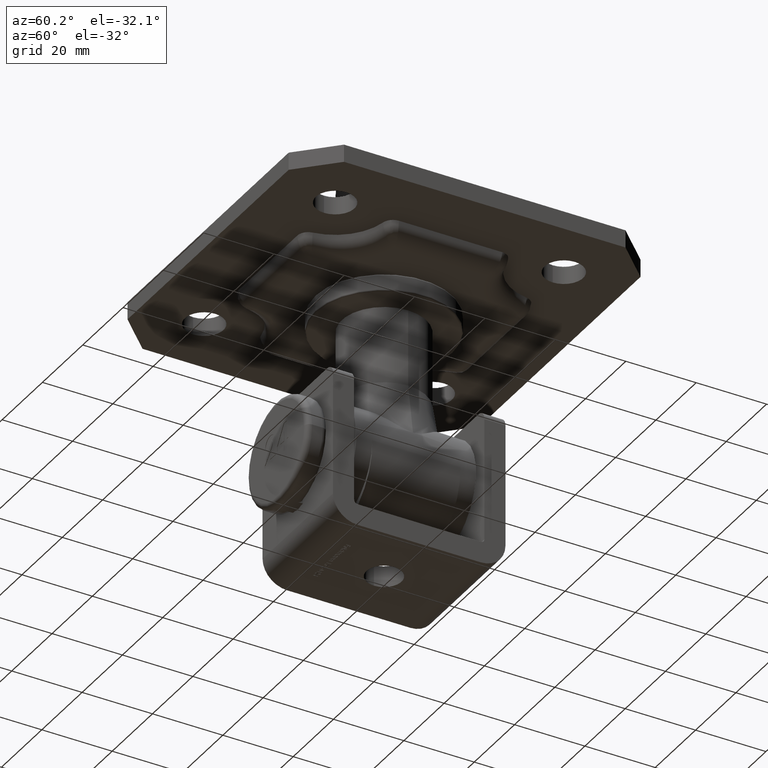
[diagram: clean part render]
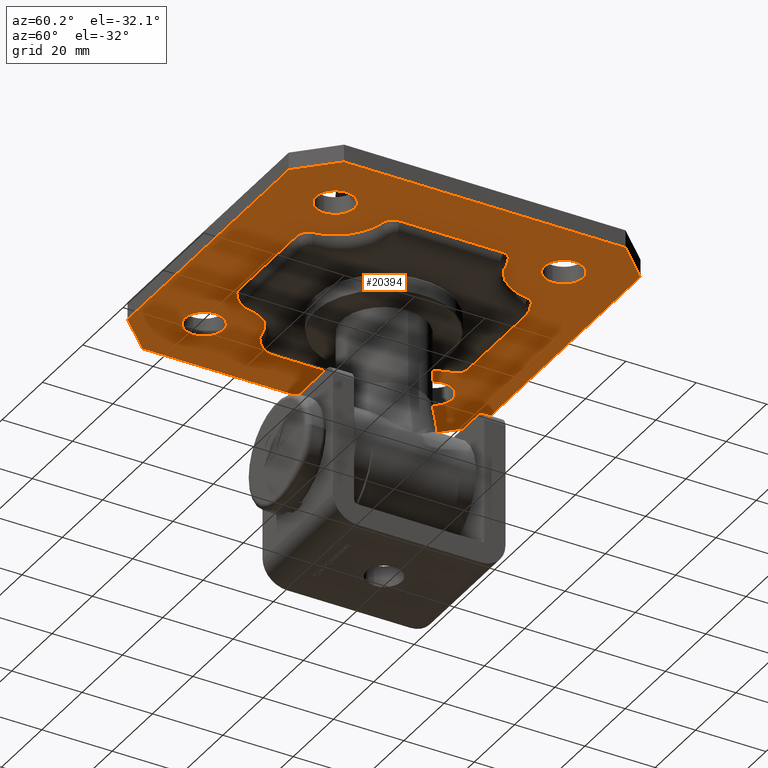
[diagram: same view with one face highlighted and labeled with its STEP entity id]
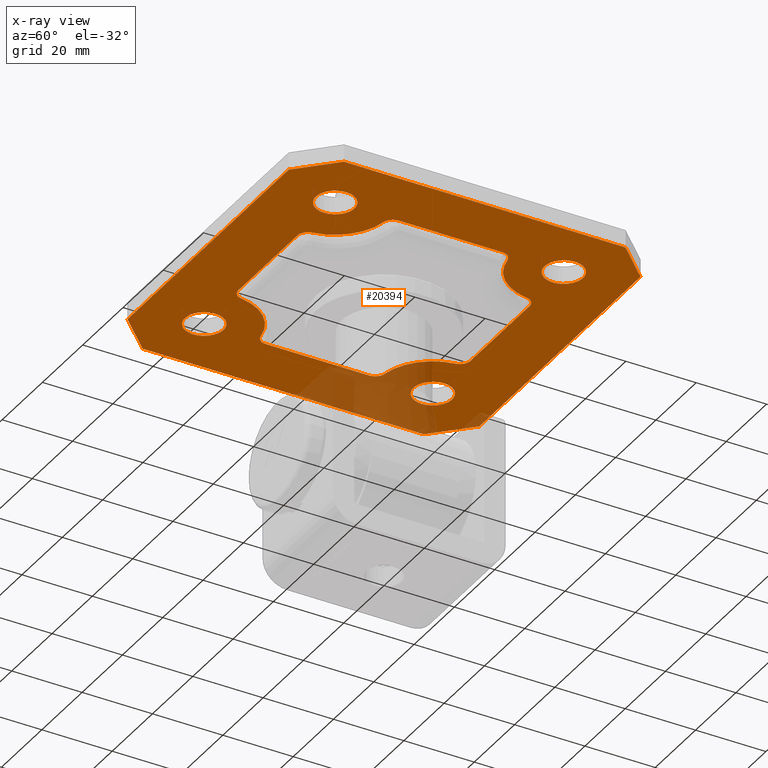
[diagram: x-ray of the same camera — body ghosted, the highlighted face saturated]
A machine part, auxiliary view. The second image highlights one B-rep face of the part: STEP entity #20394.
The next image is the same camera in x-ray: the body ghosted, the highlighted face saturated — about 12% of this face is hidden behind the body in this view.
In plain terms, the highlighted planar face has unit normal (0, 0, -1).
Its self-contained STEP definition (entity closure, byte-faithful):
#33 = CIRCLE ( 'NONE', #7612, 2.999999999999999100 ) ;
#65 = EDGE_CURVE ( 'NONE', #7434, #16310, #17737, .T. ) ;
#84 = DIRECTION ( 'NONE',  ( -0.7071067811865485700, -0.7071067811865465700, -0.0000000000000000000 ) ) ;
#116 = ORIENTED_EDGE ( 'NONE', *, *, #6962, .T. ) ;
#361 = DIRECTION ( 'NONE',  ( 0.7071067811865465700, -0.7071067811865485700, 0.0000000000000000000 ) ) ;
#438 = DIRECTION ( 'NONE',  ( 0.0000000000000000000, -1.000000000000000000, 0.0000000000000000000 ) ) ;
#459 = CARTESIAN_POINT ( 'NONE',  ( 33.00000000000000000, 17.50833564943505700, 2.500000000000000000 ) ) ;
#488 = CARTESIAN_POINT ( 'NONE',  ( -50.00000000000002100, 50.00000000000000000, 2.500000000000000000 ) ) ;
#550 = EDGE_CURVE ( 'NONE', #13258, #12662, #11962, .T. ) ;
#1090 = VERTEX_POINT ( 'NONE', #13791 ) ;
#1130 = DIRECTION ( 'NONE',  ( -0.0000000000000000000, 0.0000000000000000000, 1.000000000000000000 ) ) ;
#1137 = AXIS2_PLACEMENT_3D ( 'NONE', #6044, #19841, #7791 ) ;
#1279 = CARTESIAN_POINT ( 'NONE',  ( 0.0000000000000000000, 0.0000000000000000000, 2.500000000000000000 ) ) ;
#1283 = ORIENTED_EDGE ( 'NONE', *, *, #7781, .T. ) ;
#1292 = LINE ( 'NONE', #488, #2632 ) ;
#1358 = DIRECTION ( 'NONE',  ( 0.0000000000000000000, 0.0000000000000000000, 1.000000000000000000 ) ) ;
#1500 = AXIS2_PLACEMENT_3D ( 'NONE', #6753, #15661, #1926 ) ;
#1614 = CARTESIAN_POINT ( 'NONE',  ( -14.67445653002412000, 33.00000000000000000, 2.500000000000000000 ) ) ;
#1689 = CARTESIAN_POINT ( 'NONE',  ( 37.99999999999999300, -32.50000000000001400, 2.500000000000000000 ) ) ;
#1734 = ORIENTED_EDGE ( 'NONE', *, *, #6853, .T. ) ;
#1829 = DIRECTION ( 'NONE',  ( 1.000000000000000000, 0.0000000000000000000, 0.0000000000000000000 ) ) ;
#1859 = VERTEX_POINT ( 'NONE', #18330 ) ;
#1926 = DIRECTION ( 'NONE',  ( 1.000000000000000000, 0.0000000000000000000, 0.0000000000000000000 ) ) ;
#2042 = FACE_BOUND ( 'NONE', #3395, .T. ) ;
#2112 = CARTESIAN_POINT ( 'NONE',  ( -33.00000000000000000, 17.50833564943505700, 2.500000000000000000 ) ) ;
#2136 = EDGE_CURVE ( 'NONE', #7434, #13679, #10088, .T. ) ;
#2169 = CARTESIAN_POINT ( 'NONE',  ( -14.67445653002412000, 30.00000000000000400, 2.500000000000000400 ) ) ;
#2177 = CARTESIAN_POINT ( 'NONE',  ( -38.00000000000000700, -32.50000000000001400, 2.500000000000000000 ) ) ;
#2183 = CARTESIAN_POINT ( 'NONE',  ( 45.00000000000005700, 44.99999999999992900, 2.500000000000000000 ) ) ;
#2321 = DIRECTION ( 'NONE',  ( -0.7071067811865465700, 0.7071067811865485700, -0.0000000000000000000 ) ) ;
#2329 = CARTESIAN_POINT ( 'NONE',  ( -27.00000000000001400, 32.50000000000000700, 2.500000000000000000 ) ) ;
#2460 = ORIENTED_EDGE ( 'NONE', *, *, #65, .F. ) ;
#2529 = AXIS2_PLACEMENT_3D ( 'NONE', #19951, #9682, #18336 ) ;
#2556 = CIRCLE ( 'NONE', #1137, 5.499999999999998200 ) ;
#2632 = VECTOR ( 'NONE', #15822, 1000.000000000000000 ) ;
#2752 = VECTOR ( 'NONE', #438, 1000.000000000000000 ) ;
#3048 = EDGE_CURVE ( 'NONE', #5602, #21319, #18386, .T. ) ;
#3089 = AXIS2_PLACEMENT_3D ( 'NONE', #1279, #1130, #8138 ) ;
#3218 = DIRECTION ( 'NONE',  ( 1.000000000000000000, 0.0000000000000000000, 0.0000000000000000000 ) ) ;
#3314 = DIRECTION ( 'NONE',  ( -0.0000000000000000000, -0.0000000000000000000, -1.000000000000000000 ) ) ;
#3331 = DIRECTION ( 'NONE',  ( 1.000000000000000000, 0.0000000000000000000, 0.0000000000000000000 ) ) ;
#3395 = EDGE_LOOP ( 'NONE', ( #19912, #13442, #2460, #14525, #4668, #21025, #11681, #1734, #13435, #116, #16723, #6361, #15001, #6785, #15741, #6920 ) ) ;
#3435 = VECTOR ( 'NONE', #22191, 1000.000000000000000 ) ;
#3459 = CIRCLE ( 'NONE', #11053, 15.00000000000000000 ) ;
#3481 = DIRECTION ( 'NONE',  ( 0.0000000000000000000, -0.0000000000000000000, -1.000000000000000000 ) ) ;
#3692 = CIRCLE ( 'NONE', #9042, 2.999999999999999100 ) ;
#3736 = CIRCLE ( 'NONE', #1500, 2.999999999999999100 ) ;
#3741 = VERTEX_POINT ( 'NONE', #10576 ) ;
#3791 = VERTEX_POINT ( 'NONE', #19488 ) ;
#3871 = AXIS2_PLACEMENT_3D ( 'NONE', #8714, #3314, #12085 ) ;
#3915 = CARTESIAN_POINT ( 'NONE',  ( 26.99999999999999600, -32.50000000000001400, 2.500000000000000000 ) ) ;
#3995 = ORIENTED_EDGE ( 'NONE', *, *, #17551, .T. ) ;
#4337 = VERTEX_POINT ( 'NONE', #4913 ) ;
#4402 = CARTESIAN_POINT ( 'NONE',  ( 49.99999999999999300, 39.99999999999997200, 2.500000000000000000 ) ) ;
#4541 = EDGE_CURVE ( 'NONE', #1090, #11505, #20303, .T. ) ;
#4668 = ORIENTED_EDGE ( 'NONE', *, *, #5828, .F. ) ;
#4715 = CARTESIAN_POINT ( 'NONE',  ( -50.00000000000002100, 50.00000000000000000, 2.500000000000000000 ) ) ;
#4800 = EDGE_LOOP ( 'NONE', ( #14925, #19617 ) ) ;
#4913 = CARTESIAN_POINT ( 'NONE',  ( -14.67445653002412700, -33.00000000000000000, 2.500000000000000000 ) ) ;
#5229 = DIRECTION ( 'NONE',  ( 0.0000000000000000000, 0.0000000000000000000, 1.000000000000000000 ) ) ;
#5447 = AXIS2_PLACEMENT_3D ( 'NONE', #2169, #10900, #7051 ) ;
#5457 = LINE ( 'NONE', #9790, #14671 ) ;
#5602 = VERTEX_POINT ( 'NONE', #20174 ) ;
#5634 = ORIENTED_EDGE ( 'NONE', *, *, #18132, .T. ) ;
#5740 = VECTOR ( 'NONE', #8331, 1000.000000000000100 ) ;
#5757 = AXIS2_PLACEMENT_3D ( 'NONE', #14897, #20037, #14831 ) ;
#5828 = EDGE_CURVE ( 'NONE', #14003, #13679, #16348, .T. ) ;
#5849 = CIRCLE ( 'NONE', #5757, 5.499999999999994700 ) ;
#5918 = EDGE_CURVE ( 'NONE', #9758, #11517, #17934, .T. ) ;
#6044 = CARTESIAN_POINT ( 'NONE',  ( 32.49999999999999300, -32.50000000000001400, 2.500000000000000000 ) ) ;
#6188 = ORIENTED_EDGE ( 'NONE', *, *, #19381, .T. ) ;
#6215 = VERTEX_POINT ( 'NONE', #12860 ) ;
#6361 = ORIENTED_EDGE ( 'NONE', *, *, #10303, .T. ) ;
#6379 = EDGE_CURVE ( 'NONE', #11505, #1090, #10321, .T. ) ;
#6537 = DIRECTION ( 'NONE',  ( 0.0000000000000000000, -0.0000000000000000000, -1.000000000000000000 ) ) ;
#6574 = EDGE_CURVE ( 'NONE', #13258, #8596, #16129, .T. ) ;
#6608 = EDGE_CURVE ( 'NONE', #9429, #10431, #10187, .T. ) ;
#6638 = DIRECTION ( 'NONE',  ( -1.000000000000000000, -0.0000000000000000000, -0.0000000000000000000 ) ) ;
#6699 = EDGE_CURVE ( 'NONE', #4337, #18567, #17722, .T. ) ;
#6753 = CARTESIAN_POINT ( 'NONE',  ( 14.67445653002412000, -30.00000000000000400, 2.500000000000000400 ) ) ;
#6785 = ORIENTED_EDGE ( 'NONE', *, *, #16864, .T. ) ;
#6853 = EDGE_CURVE ( 'NONE', #15291, #3741, #15299, .T. ) ;
#6885 = FACE_BOUND ( 'NONE', #18415, .T. ) ;
#6920 = ORIENTED_EDGE ( 'NONE', *, *, #550, .T. ) ;
#6921 = CARTESIAN_POINT ( 'NONE',  ( -30.00000000000000400, -14.67445653002411800, 2.500000000000000400 ) ) ;
#6962 = EDGE_CURVE ( 'NONE', #1859, #16287, #3692, .T. ) ;
#6987 = ORIENTED_EDGE ( 'NONE', *, *, #6379, .F. ) ;
#7048 = VERTEX_POINT ( 'NONE', #2177 ) ;
#7051 = DIRECTION ( 'NONE',  ( 1.000000000000000000, 2.312964634635743400E-015, 0.0000000000000000000 ) ) ;
#7254 = DIRECTION ( 'NONE',  ( 1.000000000000000000, 0.0000000000000000000, 0.0000000000000000000 ) ) ;
#7273 = LINE ( 'NONE', #2112, #2752 ) ;
#7302 = AXIS2_PLACEMENT_3D ( 'NONE', #11693, #9884, #21849 ) ;
#7315 = CIRCLE ( 'NONE', #2529, 2.999999999999999100 ) ;
#7324 = VECTOR ( 'NONE', #9719, 1000.000000000000000 ) ;
#7415 = DIRECTION ( 'NONE',  ( 0.0000000000000000000, 0.0000000000000000000, 1.000000000000000000 ) ) ;
#7434 = VERTEX_POINT ( 'NONE', #14898 ) ;
#7528 = CARTESIAN_POINT ( 'NONE',  ( 32.49999999999999300, 32.49999999999997200, 2.500000000000000000 ) ) ;
#7572 = VECTOR ( 'NONE', #18907, 1000.000000000000000 ) ;
#7612 = AXIS2_PLACEMENT_3D ( 'NONE', #22169, #6537, #3331 ) ;
#7673 = EDGE_CURVE ( 'NONE', #7048, #14904, #8231, .T. ) ;
#7713 = EDGE_CURVE ( 'NONE', #15291, #3791, #10705, .T. ) ;
#7759 = VECTOR ( 'NONE', #6638, 1000.000000000000000 ) ;
#7781 = EDGE_CURVE ( 'NONE', #15709, #9474, #1292, .T. ) ;
#7791 = DIRECTION ( 'NONE',  ( 1.000000000000000000, 0.0000000000000000000, 0.0000000000000000000 ) ) ;
#7856 = CARTESIAN_POINT ( 'NONE',  ( 32.50000000000000700, -32.50000000000000700, 2.500000000000000000 ) ) ;
#7976 = EDGE_CURVE ( 'NONE', #1859, #3741, #21928, .T. ) ;
#8138 = DIRECTION ( 'NONE',  ( 1.000000000000000000, 0.0000000000000000000, 0.0000000000000000000 ) ) ;
#8223 = CARTESIAN_POINT ( 'NONE',  ( -33.00000000000000000, 14.67445653002412000, 2.500000000000000000 ) ) ;
#8231 = CIRCLE ( 'NONE', #7302, 5.499999999999994700 ) ;
#8321 = AXIS2_PLACEMENT_3D ( 'NONE', #20948, #19091, #1829 ) ;
#8331 = DIRECTION ( 'NONE',  ( 0.7071067811865489100, 0.7071067811865460200, -0.0000000000000000000 ) ) ;
#8552 = ORIENTED_EDGE ( 'NONE', *, *, #4541, .F. ) ;
#8596 = VERTEX_POINT ( 'NONE', #20686 ) ;
#8710 = DIRECTION ( 'NONE',  ( 1.000000000000000000, 0.0000000000000000000, 0.0000000000000000000 ) ) ;
#8714 = CARTESIAN_POINT ( 'NONE',  ( 32.50000000000000700, 32.50000000000000700, 2.500000000000000000 ) ) ;
#8742 = AXIS2_PLACEMENT_3D ( 'NONE', #13237, #1358, #14948 ) ;
#9042 = AXIS2_PLACEMENT_3D ( 'NONE', #12026, #10124, #13752 ) ;
#9100 = CARTESIAN_POINT ( 'NONE',  ( -40.00000000000000700, 50.00000000000000000, 2.500000000000000000 ) ) ;
#9216 = DIRECTION ( 'NONE',  ( 1.000000000000000000, 0.0000000000000000000, 0.0000000000000000000 ) ) ;
#9429 = VERTEX_POINT ( 'NONE', #1689 ) ;
#9473 = EDGE_CURVE ( 'NONE', #11517, #9758, #9697, .T. ) ;
#9474 = VERTEX_POINT ( 'NONE', #20723 ) ;
#9682 = DIRECTION ( 'NONE',  ( 0.0000000000000000000, -0.0000000000000000000, -1.000000000000000000 ) ) ;
#9697 = CIRCLE ( 'NONE', #13587, 5.499999999999994700 ) ;
#9719 = DIRECTION ( 'NONE',  ( -6.938893903907228400E-017, 1.000000000000000000, -0.0000000000000000000 ) ) ;
#9758 = VERTEX_POINT ( 'NONE', #2329 ) ;
#9765 = LINE ( 'NONE', #17135, #7572 ) ;
#9790 = CARTESIAN_POINT ( 'NONE',  ( -45.00000000000006400, -44.99999999999993600, 2.500000000000000000 ) ) ;
#9884 = DIRECTION ( 'NONE',  ( 0.0000000000000000000, 0.0000000000000000000, 1.000000000000000000 ) ) ;
#10088 = CIRCLE ( 'NONE', #5447, 2.999999999999999100 ) ;
#10103 = ORIENTED_EDGE ( 'NONE', *, *, #9473, .F. ) ;
#10124 = DIRECTION ( 'NONE',  ( 0.0000000000000000000, -0.0000000000000000000, -1.000000000000000000 ) ) ;
#10187 = CIRCLE ( 'NONE', #8742, 5.499999999999998200 ) ;
#10303 = EDGE_CURVE ( 'NONE', #11016, #18567, #3736, .T. ) ;
#10321 = CIRCLE ( 'NONE', #8321, 5.499999999999998200 ) ;
#10366 = DIRECTION ( 'NONE',  ( 1.000000000000000000, 1.156482317317871700E-015, 0.0000000000000000000 ) ) ;
#10431 = VERTEX_POINT ( 'NONE', #3915 ) ;
#10523 = EDGE_CURVE ( 'NONE', #14904, #7048, #5849, .T. ) ;
#10576 = CARTESIAN_POINT ( 'NONE',  ( 33.00000000000000000, 14.67445653002412000, 2.500000000000000000 ) ) ;
#10702 = EDGE_CURVE ( 'NONE', #11016, #16287, #3459, .T. ) ;
#10705 = CIRCLE ( 'NONE', #3871, 15.00000000000000000 ) ;
#10900 = DIRECTION ( 'NONE',  ( 0.0000000000000000000, -0.0000000000000000000, -1.000000000000000000 ) ) ;
#11016 = VERTEX_POINT ( 'NONE', #11746 ) ;
#11053 = AXIS2_PLACEMENT_3D ( 'NONE', #7856, #21450, #12804 ) ;
#11261 = CARTESIAN_POINT ( 'NONE',  ( 39.99999999999992200, -50.00000000000000000, 2.500000000000000000 ) ) ;
#11494 = EDGE_CURVE ( 'NONE', #19308, #16310, #21971, .T. ) ;
#11505 = VERTEX_POINT ( 'NONE', #13990 ) ;
#11517 = VERTEX_POINT ( 'NONE', #17429 ) ;
#11681 = ORIENTED_EDGE ( 'NONE', *, *, #7713, .F. ) ;
#11693 = CARTESIAN_POINT ( 'NONE',  ( -32.50000000000000700, -32.50000000000001400, 2.500000000000000000 ) ) ;
#11746 = CARTESIAN_POINT ( 'NONE',  ( 17.64538044168677200, -30.41666666666666800, 2.500000000000000000 ) ) ;
#11757 = VECTOR ( 'NONE', #12217, 1000.000000000000000 ) ;
#11946 = DIRECTION ( 'NONE',  ( 0.0000000000000000000, -0.0000000000000000000, -1.000000000000000000 ) ) ;
#11962 = CIRCLE ( 'NONE', #20419, 2.999999999999999100 ) ;
#12026 = CARTESIAN_POINT ( 'NONE',  ( 30.00000000000000400, -14.67445653002412000, 2.500000000000000400 ) ) ;
#12085 = DIRECTION ( 'NONE',  ( 1.000000000000000000, 0.0000000000000000000, 0.0000000000000000000 ) ) ;
#12217 = DIRECTION ( 'NONE',  ( -1.000000000000000000, -0.0000000000000000000, -0.0000000000000000000 ) ) ;
#12458 = LINE ( 'NONE', #2183, #15366 ) ;
#12594 = DIRECTION ( 'NONE',  ( -0.0000000000000000000, 1.000000000000000000, -0.0000000000000000000 ) ) ;
#12609 = EDGE_LOOP ( 'NONE', ( #16027, #20121, #1283, #18967, #6188, #5634, #12898, #3995 ) ) ;
#12662 = VERTEX_POINT ( 'NONE', #20932 ) ;
#12804 = DIRECTION ( 'NONE',  ( 1.000000000000000000, 0.0000000000000000000, 0.0000000000000000000 ) ) ;
#12808 = LINE ( 'NONE', #20715, #20548 ) ;
#12860 = CARTESIAN_POINT ( 'NONE',  ( 39.99999999999997900, 50.00000000000000700, 2.500000000000000000 ) ) ;
#12898 = ORIENTED_EDGE ( 'NONE', *, *, #3048, .T. ) ;
#13034 = CARTESIAN_POINT ( 'NONE',  ( -40.00000000000000700, -50.00000000000000000, 2.500000000000000000 ) ) ;
#13237 = CARTESIAN_POINT ( 'NONE',  ( 32.49999999999999300, -32.50000000000001400, 2.500000000000000000 ) ) ;
#13258 = VERTEX_POINT ( 'NONE', #19759 ) ;
#13435 = ORIENTED_EDGE ( 'NONE', *, *, #7976, .F. ) ;
#13442 = ORIENTED_EDGE ( 'NONE', *, *, #11494, .T. ) ;
#13587 = AXIS2_PLACEMENT_3D ( 'NONE', #17396, #5229, #8710 ) ;
#13610 = CARTESIAN_POINT ( 'NONE',  ( 14.67445653002412300, -33.00000000000000000, 2.500000000000000000 ) ) ;
#13671 = ORIENTED_EDGE ( 'NONE', *, *, #15258, .F. ) ;
#13679 = VERTEX_POINT ( 'NONE', #1614 ) ;
#13752 = DIRECTION ( 'NONE',  ( 1.000000000000000000, 0.0000000000000000000, 0.0000000000000000000 ) ) ;
#13791 = CARTESIAN_POINT ( 'NONE',  ( 37.99999999999999300, 32.49999999999997200, 2.500000000000000000 ) ) ;
#13809 = CARTESIAN_POINT ( 'NONE',  ( 30.00000000000000400, 14.67445653002412000, 2.500000000000000400 ) ) ;
#13900 = VERTEX_POINT ( 'NONE', #13034 ) ;
#13917 = VERTEX_POINT ( 'NONE', #11261 ) ;
#13990 = CARTESIAN_POINT ( 'NONE',  ( 27.00000000000000000, 32.49999999999997200, 2.500000000000000000 ) ) ;
#13999 = CARTESIAN_POINT ( 'NONE',  ( -50.00000000000001400, 40.00000000000002100, 2.500000000000000000 ) ) ;
#14003 = VERTEX_POINT ( 'NONE', #19227 ) ;
#14083 = EDGE_CURVE ( 'NONE', #9474, #13900, #5457, .T. ) ;
#14092 = FACE_BOUND ( 'NONE', #16760, .T. ) ;
#14213 = VERTEX_POINT ( 'NONE', #9100 ) ;
#14411 = FACE_BOUND ( 'NONE', #19844, .T. ) ;
#14514 = ORIENTED_EDGE ( 'NONE', *, *, #5918, .F. ) ;
#14525 = ORIENTED_EDGE ( 'NONE', *, *, #2136, .T. ) ;
#14671 = VECTOR ( 'NONE', #361, 1000.000000000000000 ) ;
#14674 = CARTESIAN_POINT ( 'NONE',  ( 30.41666666666666800, 17.64538044168677200, 2.500000000000000000 ) ) ;
#14831 = DIRECTION ( 'NONE',  ( 1.000000000000000000, 0.0000000000000000000, 0.0000000000000000000 ) ) ;
#14897 = CARTESIAN_POINT ( 'NONE',  ( -32.50000000000000700, -32.50000000000001400, 2.500000000000000000 ) ) ;
#14898 = CARTESIAN_POINT ( 'NONE',  ( -17.64538044168677200, 30.41666666666666800, 2.500000000000000000 ) ) ;
#14904 = VERTEX_POINT ( 'NONE', #21786 ) ;
#14925 = ORIENTED_EDGE ( 'NONE', *, *, #7673, .F. ) ;
#14948 = DIRECTION ( 'NONE',  ( 1.000000000000000000, 0.0000000000000000000, 0.0000000000000000000 ) ) ;
#15001 = ORIENTED_EDGE ( 'NONE', *, *, #6699, .F. ) ;
#15036 = FACE_OUTER_BOUND ( 'NONE', #12609, .T. ) ;
#15258 = EDGE_CURVE ( 'NONE', #10431, #9429, #2556, .T. ) ;
#15281 = CARTESIAN_POINT ( 'NONE',  ( -32.50000000000000700, 32.50000000000000700, 2.500000000000000000 ) ) ;
#15291 = VERTEX_POINT ( 'NONE', #14674 ) ;
#15299 = CIRCLE ( 'NONE', #16439, 2.999999999999999100 ) ;
#15366 = VECTOR ( 'NONE', #2321, 1000.000000000000000 ) ;
#15437 = CARTESIAN_POINT ( 'NONE',  ( 30.41666666666666800, -17.64538044168677200, 2.500000000000000000 ) ) ;
#15534 = DIRECTION ( 'NONE',  ( 1.000000000000000000, 1.156482317317871700E-015, 0.0000000000000000000 ) ) ;
#15661 = DIRECTION ( 'NONE',  ( 0.0000000000000000000, -0.0000000000000000000, -1.000000000000000000 ) ) ;
#15709 = VERTEX_POINT ( 'NONE', #13999 ) ;
#15741 = ORIENTED_EDGE ( 'NONE', *, *, #6574, .F. ) ;
#15780 = EDGE_CURVE ( 'NONE', #19308, #12662, #7273, .T. ) ;
#15822 = DIRECTION ( 'NONE',  ( 2.081668171172168500E-016, -1.000000000000000000, 0.0000000000000000000 ) ) ;
#15830 = AXIS2_PLACEMENT_3D ( 'NONE', #16131, #7415, #7254 ) ;
#16027 = ORIENTED_EDGE ( 'NONE', *, *, #21947, .T. ) ;
#16129 = CIRCLE ( 'NONE', #17278, 15.00000000000000000 ) ;
#16131 = CARTESIAN_POINT ( 'NONE',  ( -32.50000000000000700, 32.50000000000000700, 2.500000000000000000 ) ) ;
#16287 = VERTEX_POINT ( 'NONE', #15437 ) ;
#16310 = VERTEX_POINT ( 'NONE', #21037 ) ;
#16348 = LINE ( 'NONE', #17856, #11757 ) ;
#16439 = AXIS2_PLACEMENT_3D ( 'NONE', #13809, #3481, #15534 ) ;
#16723 = ORIENTED_EDGE ( 'NONE', *, *, #10702, .F. ) ;
#16760 = EDGE_LOOP ( 'NONE', ( #10103, #14514 ) ) ;
#16864 = EDGE_CURVE ( 'NONE', #4337, #8596, #33, .T. ) ;
#16866 = DIRECTION ( 'NONE',  ( -0.0000000000000000000, -0.0000000000000000000, -1.000000000000000000 ) ) ;
#17095 = LINE ( 'NONE', #21829, #5740 ) ;
#17110 = AXIS2_PLACEMENT_3D ( 'NONE', #7528, #19516, #9216 ) ;
#17128 = DIRECTION ( 'NONE',  ( 1.000000000000000000, 0.0000000000000000000, 0.0000000000000000000 ) ) ;
#17135 = CARTESIAN_POINT ( 'NONE',  ( -50.00000000000000000, -50.00000000000000000, 2.500000000000000000 ) ) ;
#17278 = AXIS2_PLACEMENT_3D ( 'NONE', #21975, #21736, #3218 ) ;
#17286 = CARTESIAN_POINT ( 'NONE',  ( -17.50833564943506100, -33.00000000000000000, 2.500000000000000000 ) ) ;
#17396 = CARTESIAN_POINT ( 'NONE',  ( -32.50000000000000700, 32.50000000000000700, 2.500000000000000000 ) ) ;
#17429 = CARTESIAN_POINT ( 'NONE',  ( -38.00000000000000700, 32.50000000000000700, 2.500000000000000000 ) ) ;
#17551 = EDGE_CURVE ( 'NONE', #21319, #6215, #12458, .T. ) ;
#17722 = LINE ( 'NONE', #17286, #3435 ) ;
#17737 = CIRCLE ( 'NONE', #21690, 15.00000000000000000 ) ;
#17856 = CARTESIAN_POINT ( 'NONE',  ( -17.50833564943506100, 33.00000000000000000, 2.500000000000000000 ) ) ;
#17934 = CIRCLE ( 'NONE', #15830, 5.499999999999994700 ) ;
#18132 = EDGE_CURVE ( 'NONE', #13917, #5602, #17095, .T. ) ;
#18173 = EDGE_CURVE ( 'NONE', #14213, #15709, #12808, .T. ) ;
#18330 = CARTESIAN_POINT ( 'NONE',  ( 33.00000000000000000, -14.67445653002412000, 2.500000000000000000 ) ) ;
#18336 = DIRECTION ( 'NONE',  ( 1.000000000000000000, 0.0000000000000000000, 0.0000000000000000000 ) ) ;
#18348 = AXIS2_PLACEMENT_3D ( 'NONE', #20610, #11946, #17128 ) ;
#18386 = LINE ( 'NONE', #19987, #7324 ) ;
#18415 = EDGE_LOOP ( 'NONE', ( #6987, #8552 ) ) ;
#18479 = PLANE ( 'NONE',  #3089 ) ;
#18560 = LINE ( 'NONE', #4715, #7759 ) ;
#18567 = VERTEX_POINT ( 'NONE', #13610 ) ;
#18907 = DIRECTION ( 'NONE',  ( 1.000000000000000000, 0.0000000000000000000, 0.0000000000000000000 ) ) ;
#18967 = ORIENTED_EDGE ( 'NONE', *, *, #14083, .T. ) ;
#19001 = DIRECTION ( 'NONE',  ( 0.0000000000000000000, -0.0000000000000000000, -1.000000000000000000 ) ) ;
#19091 = DIRECTION ( 'NONE',  ( 0.0000000000000000000, 0.0000000000000000000, 1.000000000000000000 ) ) ;
#19215 = EDGE_CURVE ( 'NONE', #14003, #3791, #7315, .T. ) ;
#19227 = CARTESIAN_POINT ( 'NONE',  ( 14.67445653002412300, 33.00000000000000000, 2.500000000000000000 ) ) ;
#19308 = VERTEX_POINT ( 'NONE', #8223 ) ;
#19381 = EDGE_CURVE ( 'NONE', #13900, #13917, #9765, .T. ) ;
#19488 = CARTESIAN_POINT ( 'NONE',  ( 17.64538044168677200, 30.41666666666666800, 2.500000000000000000 ) ) ;
#19516 = DIRECTION ( 'NONE',  ( 0.0000000000000000000, 0.0000000000000000000, 1.000000000000000000 ) ) ;
#19617 = ORIENTED_EDGE ( 'NONE', *, *, #10523, .F. ) ;
#19759 = CARTESIAN_POINT ( 'NONE',  ( -30.41666666666667100, -17.64538044168676100, 2.500000000000000000 ) ) ;
#19811 = VECTOR ( 'NONE', #12594, 1000.000000000000000 ) ;
#19841 = DIRECTION ( 'NONE',  ( 0.0000000000000000000, 0.0000000000000000000, 1.000000000000000000 ) ) ;
#19844 = EDGE_LOOP ( 'NONE', ( #13671, #19953 ) ) ;
#19912 = ORIENTED_EDGE ( 'NONE', *, *, #15780, .F. ) ;
#19951 = CARTESIAN_POINT ( 'NONE',  ( 14.67445653002412000, 30.00000000000000400, 2.500000000000000400 ) ) ;
#19953 = ORIENTED_EDGE ( 'NONE', *, *, #6608, .F. ) ;
#19987 = CARTESIAN_POINT ( 'NONE',  ( 49.99999999999999300, 50.00000000000000000, 2.500000000000000000 ) ) ;
#20037 = DIRECTION ( 'NONE',  ( 0.0000000000000000000, 0.0000000000000000000, 1.000000000000000000 ) ) ;
#20121 = ORIENTED_EDGE ( 'NONE', *, *, #18173, .T. ) ;
#20174 = CARTESIAN_POINT ( 'NONE',  ( 49.99999999999999300, -40.00000000000000000, 2.500000000000000000 ) ) ;
#20303 = CIRCLE ( 'NONE', #17110, 5.499999999999998200 ) ;
#20394 = ADVANCED_FACE ( 'NONE', ( #14411, #14092, #15036, #6885, #21877, #2042 ), #18479, .T. ) ;
#20419 = AXIS2_PLACEMENT_3D ( 'NONE', #6921, #19001, #10366 ) ;
#20548 = VECTOR ( 'NONE', #84, 1000.000000000000000 ) ;
#20610 = CARTESIAN_POINT ( 'NONE',  ( -30.00000000000000400, 14.67445653002412000, 2.500000000000000400 ) ) ;
#20686 = CARTESIAN_POINT ( 'NONE',  ( -17.64538044168677500, -30.41666666666666800, 2.500000000000000000 ) ) ;
#20715 = CARTESIAN_POINT ( 'NONE',  ( -44.99999999999995000, 45.00000000000007800, 2.500000000000000000 ) ) ;
#20723 = CARTESIAN_POINT ( 'NONE',  ( -50.00000000000001400, -39.99999999999993600, 2.500000000000000000 ) ) ;
#20932 = CARTESIAN_POINT ( 'NONE',  ( -33.00000000000000000, -14.67445653002411500, 2.500000000000000000 ) ) ;
#20948 = CARTESIAN_POINT ( 'NONE',  ( 32.49999999999999300, 32.49999999999997200, 2.500000000000000000 ) ) ;
#21025 = ORIENTED_EDGE ( 'NONE', *, *, #19215, .T. ) ;
#21037 = CARTESIAN_POINT ( 'NONE',  ( -30.41666666666666800, 17.64538044168677200, 2.500000000000000000 ) ) ;
#21319 = VERTEX_POINT ( 'NONE', #4402 ) ;
#21450 = DIRECTION ( 'NONE',  ( -0.0000000000000000000, -0.0000000000000000000, -1.000000000000000000 ) ) ;
#21690 = AXIS2_PLACEMENT_3D ( 'NONE', #15281, #16866, #21923 ) ;
#21736 = DIRECTION ( 'NONE',  ( -0.0000000000000000000, -0.0000000000000000000, -1.000000000000000000 ) ) ;
#21786 = CARTESIAN_POINT ( 'NONE',  ( -27.00000000000001400, -32.50000000000001400, 2.500000000000000000 ) ) ;
#21829 = CARTESIAN_POINT ( 'NONE',  ( 44.99999999999987900, -45.00000000000007800, 2.500000000000000000 ) ) ;
#21849 = DIRECTION ( 'NONE',  ( 1.000000000000000000, 0.0000000000000000000, 0.0000000000000000000 ) ) ;
#21877 = FACE_BOUND ( 'NONE', #4800, .T. ) ;
#21923 = DIRECTION ( 'NONE',  ( 1.000000000000000000, 0.0000000000000000000, 0.0000000000000000000 ) ) ;
#21928 = LINE ( 'NONE', #459, #19811 ) ;
#21947 = EDGE_CURVE ( 'NONE', #6215, #14213, #18560, .T. ) ;
#21971 = CIRCLE ( 'NONE', #18348, 2.999999999999999100 ) ;
#21975 = CARTESIAN_POINT ( 'NONE',  ( -32.50000000000001400, -32.50000000000000000, 2.500000000000000000 ) ) ;
#22169 = CARTESIAN_POINT ( 'NONE',  ( -14.67445653002412700, -30.00000000000000400, 2.500000000000000400 ) ) ;
#22191 = DIRECTION ( 'NONE',  ( 1.000000000000000000, 0.0000000000000000000, 0.0000000000000000000 ) ) ;